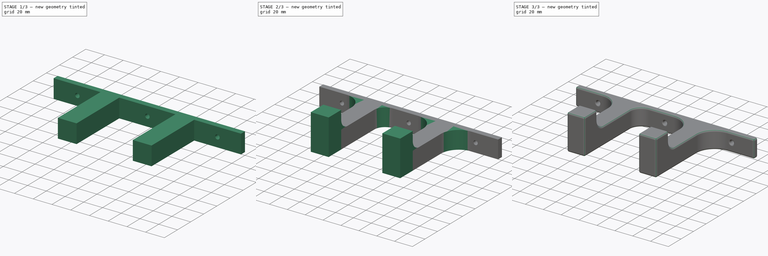
[diagram: build sequence overview — one tinted view per stage of 3, left to right]
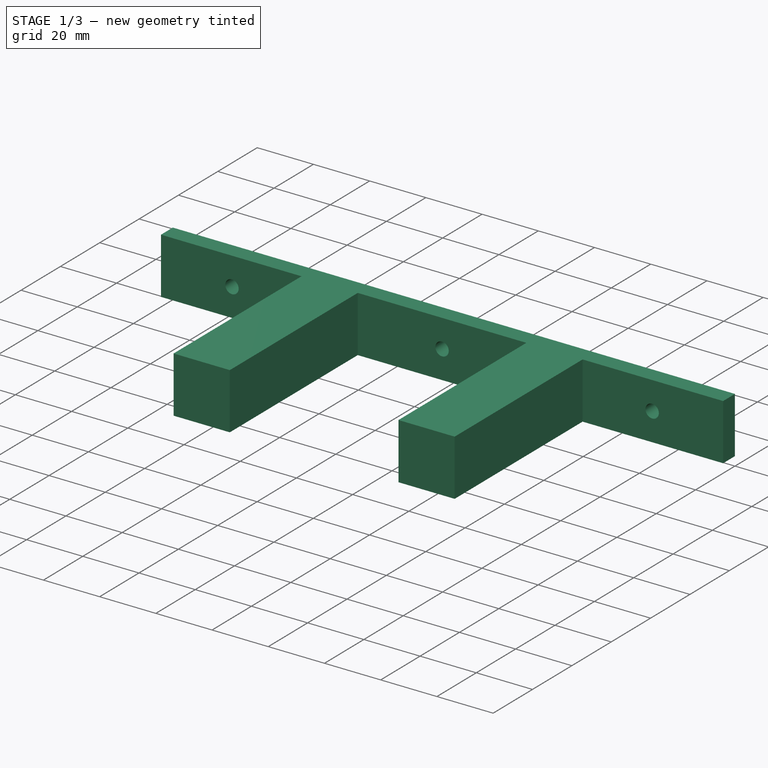
[diagram: stage 1 of 3 — iso view after this stage's code; geometry added in this stage tinted green]
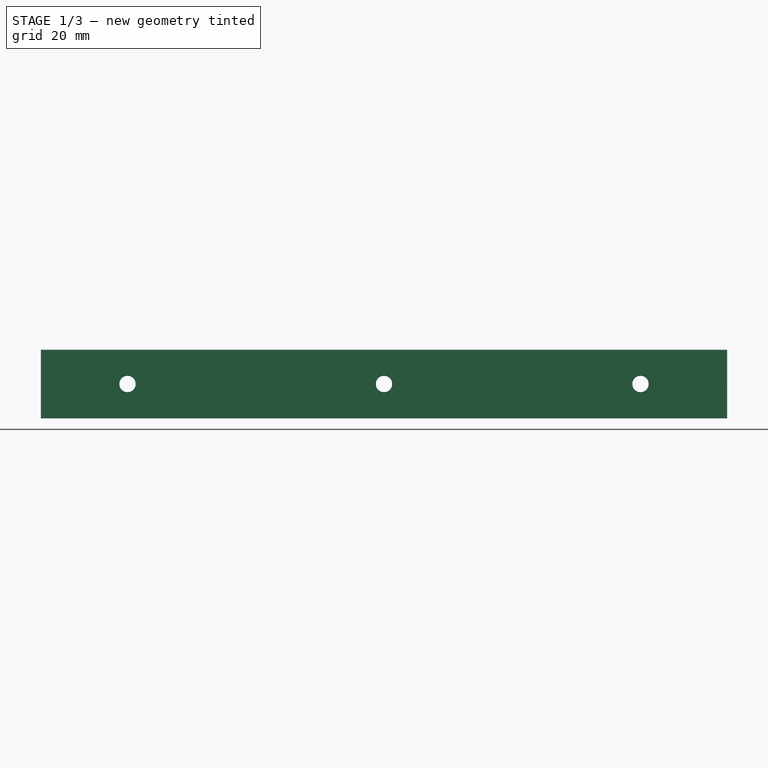
[diagram: stage 1 of 3 — front view after this stage's code; geometry added in this stage tinted green]
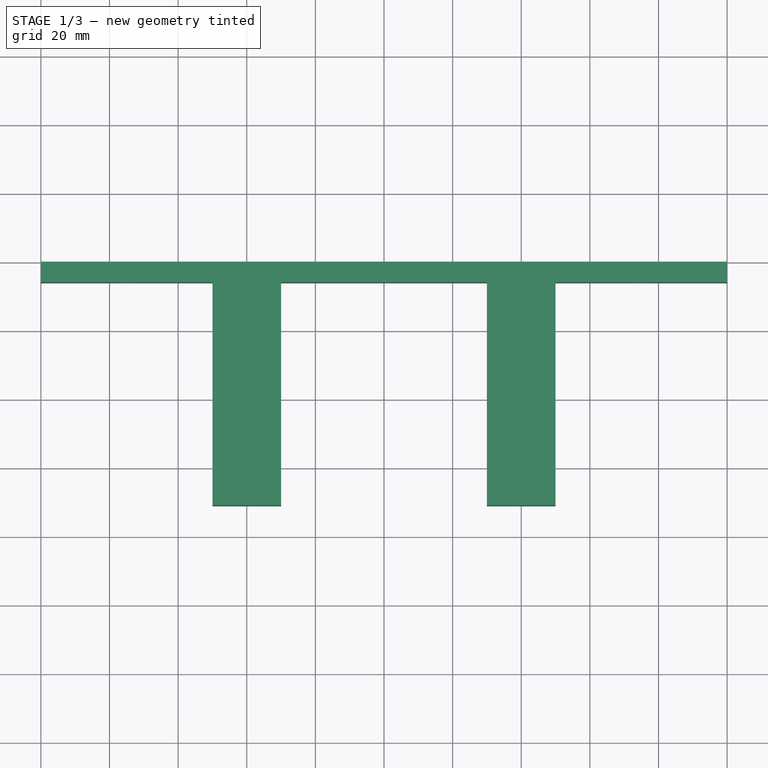
[diagram: stage 1 of 3 — top view after this stage's code; geometry added in this stage tinted green]
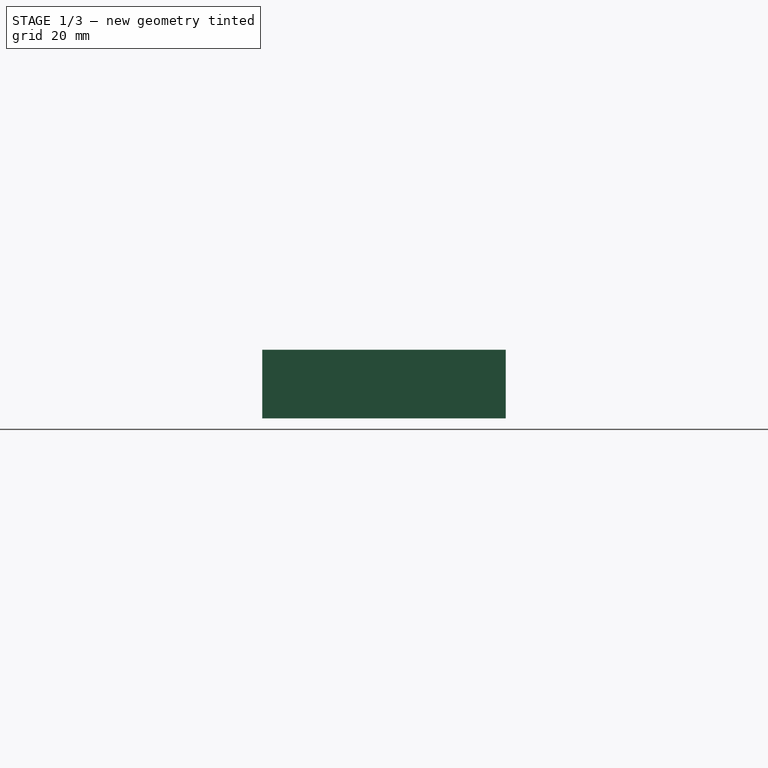
[diagram: stage 1 of 3 — right view after this stage's code; geometry added in this stage tinted green]
FCSTD DOCUMENT  (FreeCAD 2023.131R26244 +5365 (Git))
Label: Tool Holders
License: All rights reserved
LicenseURL: http://en.wikipedia.org/wiki/All_rights_reserved
objects: PartDesign::Fillet×4, Sketcher::SketchObject×3, PartDesign::Pad×3, Spreadsheet::Sheet×1, PartDesign::Body×1
note: 28 computed .brp shape members not serialized (recipe doc carries the construction recipe); baked Part::Feature solids carry a one-line shape summary decoded from their .brp

FEATURE [Spreadsheet::Sheet] Spreadsheet  label="Parameters"
  PythonMode = false
  ShowCells = 0
  TreeRank = 10
  cells = A1=Thickness; B1(thickness)=6; A2=Handle Width; B2(handle_width)=60; A3=Handle Depth; B3(handle_depth)=65; A5=Brace Thickness; B5(brace_thickness)=20; A7=Mounting Plate Height; B7(base_height)=20; A8=Moungint Plate Margin; B8(base_margin)=30; A9=Mounting Plate Width; B9(base_width)=200; A11=Hole Diameter; B11(hole_diameter)=4.75
FEATURE [Sketcher::SketchObject] Sketch006
  ArcFitTolerance = 1e-06
  AttachmentSupport = -> [XZ_Plane002]
  ExternalBSplineMaxDegree = 5
  ExternalBSplineTolerance = 0.0001
  FullyConstrained = true
  InternalTolerance = 1e-06
  InvalidShape = false
  MakeInternals = false
  MapMode = 5
  Placement = pos=(0,0,0) rot=(1,0,0;1.5708rad)
  Support = -> [XZ_Plane002]
  TreeRank = 46
  ValidateShape = true
  expr: Constraints[10] = <<Parameters>>.base_width
  expr: Constraints[11] = <<Parameters>>.base_height
  expr: Constraints[13] = <<Parameters>>.hole_diameter
  expr: Constraints[18] = <<Parameters>>.handle_width + 4 * <<Parameters>>.brace_thickness + 2 * <<Parameters>>.hole_diameter
  sketch-geometry (8):
    g0: LineSegment StartX=100 StartY=-10 StartZ=0 EndX=100 EndY=10 EndZ=0
    g1: LineSegment StartX=100 StartY=10 StartZ=0 EndX=-100 EndY=10 EndZ=0
    g2: LineSegment StartX=-100 StartY=10 StartZ=0 EndX=-100 EndY=-10 EndZ=0
    g3: LineSegment StartX=-100 StartY=-10 StartZ=0 EndX=100 EndY=-10 EndZ=0
    g4: GeomPoint [constr] X=0 Y=0 Z=0
    g5: Circle CenterX=0 CenterY=0 CenterZ=0 NormalX=0 NormalY=0 NormalZ=1 AngleXU=0 Radius=2.375
    g6: Circle CenterX=-74.75 CenterY=0 CenterZ=0 NormalX=0 NormalY=0 NormalZ=1 AngleXU=0 Radius=2.375
    g7: Circle CenterX=74.75 CenterY=0 CenterZ=0 NormalX=0 NormalY=0 NormalZ=1 AngleXU=0 Radius=2.375
  constraints (19):
    c: Coincident(g0,g1)
    c: Coincident(g1,g2)
    c: Coincident(g2,g3)
    c: Coincident(g3,g0)
    c: Horizontal(g1)
    c: Horizontal(g3)
    c: Vertical(g0)
    c: Vertical(g2)
    c: Symmetric(g1,g0,g4)
    c: Coincident(g4,g-1)
    c: DistanceX(g2,g0) = 200
    c: DistanceY(g0,g0) = 20
    c: Coincident(g5,g4)
    c: Diameter(g5) = 4.75
    c: PointOnObject(g6,g-1)
    c: Equal(g5,g6)
    c: Equal(g5,g7)
    c: Symmetric(g6,g7,g5)
    c: DistanceX(g6,g7) = 149.5
FEATURE [PartDesign::Pad] Pad
  AddSubType = 0
  AlongSketchNormal = false
  AutoTaperInnerAngle = true
  CheckUpToFaceLimits = true
  ClaimChildren = false
  Direction = (0,-1,-2e-16)
  Fit = 0
  FitJoin = 0
  InnerFit = 0
  InnerFitJoin = 0
  InvalidShape = false
  Length = 6
  Length2 = 100
  Linearize = true
  NewSolid = false
  Profile = -> Sketch006
  Suppress = false
  TaperInnerAngle = 0
  TaperInnerAngleRev = 0
  TreeRank = 47
  Type = 0
  ValidateShape = true
  _ProfileBasedVersion = 1
  expr: Length = <<Parameters>>.thickness
FEATURE [Sketcher::SketchObject] Sketch
  ArcFitTolerance = 1e-06
  AttachmentSupport = -> [Pad]
  ExternalBSplineMaxDegree = 5
  ExternalBSplineTolerance = 0.0001
  FullyConstrained = true
  InternalTolerance = 1e-06
  InvalidShape = false
  MakeInternals = false
  MapMode = 5
  Placement = pos=(0,-6,-1.3e-15) rot=(1,0,0;1.5708rad)
  Support = -> [Pad]
  TreeRank = 48
  ValidateShape = true
  expr: Constraints[22] = <<Parameters>>.base_height
  expr: Constraints[23] = <<Parameters>>.handle_width
  expr: Constraints[24] = <<Parameters>>.brace_thickness
  sketch-geometry (10):
    g0: LineSegment StartX=-30 StartY=-10 StartZ=0 EndX=-30 EndY=10 EndZ=0
    g1: LineSegment StartX=-30 StartY=10 StartZ=0 EndX=-50 EndY=10 EndZ=0
    g2: LineSegment StartX=-50 StartY=10 StartZ=0 EndX=-50 EndY=-10 EndZ=0
    g3: LineSegment StartX=-50 StartY=-10 StartZ=0 EndX=-30 EndY=-10 EndZ=0
    g4: GeomPoint [constr] X=-40 Y=-1e-16 Z=0
    g5: LineSegment StartX=50 StartY=-10 StartZ=0 EndX=50 EndY=10 EndZ=0
    g6: LineSegment StartX=50 StartY=10 StartZ=0 EndX=30 EndY=10 EndZ=0
    g7: LineSegment StartX=30 StartY=10 StartZ=0 EndX=30 EndY=-10 EndZ=0
    g8: LineSegment StartX=30 StartY=-10 StartZ=0 EndX=50 EndY=-10 EndZ=0
    g9: GeomPoint [constr] X=40 Y=0 Z=0
  constraints (25):
    c: Coincident(g0,g1)
    c: Coincident(g1,g2)
    c: Coincident(g2,g3)
    c: Coincident(g3,g0)
    c: Horizontal(g1)
    c: Horizontal(g3)
    c: Vertical(g0)
    c: Vertical(g2)
    c: Symmetric(g1,g0,g4)
    c: PointOnObject(g4,g-1)
    c: Coincident(g5,g6)
    c: Coincident(g6,g7)
    c: Coincident(g7,g8)
    c: Coincident(g8,g5)
    c: Horizontal(g6)
    c: Horizontal(g8)
    c: Vertical(g5)
    c: Vertical(g7)
    c: Symmetric(g6,g5,g9)
    c: Symmetric(g4,g9,g-1)
    c: Equal(g1,g6)
    c: Equal(g0,g7)
    c: DistanceY(g0,g0) = 20
    c: DistanceX(g0,g6) = 60
    c: DistanceX(g2,g0) = 20
FEATURE [PartDesign::Pad] Pad001
  AddSubType = 0
  AlongSketchNormal = false
  AutoTaperInnerAngle = true
  BaseFeature = -> Pad
  CheckUpToFaceLimits = true
  ClaimChildren = false
  Direction = (0,-1,-2e-16)
  Fit = 0
  FitJoin = 0
  InnerFit = 0
  InnerFitJoin = 0
  InvalidShape = false
  Length = 65
  Length2 = 100
  Linearize = true
  NewSolid = false
  Profile = -> Sketch
  Suppress = false
  TaperInnerAngle = 0
  TaperInnerAngleRev = 0
  TreeRank = 49
  Type = 0
  ValidateShape = true
  _ProfileBasedVersion = 1
  expr: Length = <<Parameters>>.handle_depth
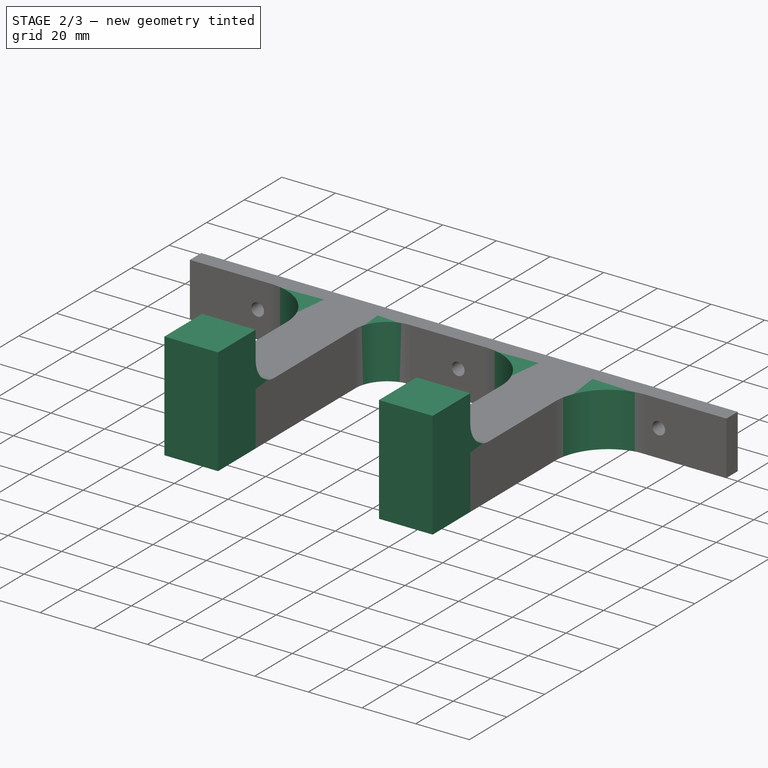
[diagram: stage 2 of 3 — iso view after this stage's code; geometry added in this stage tinted green]
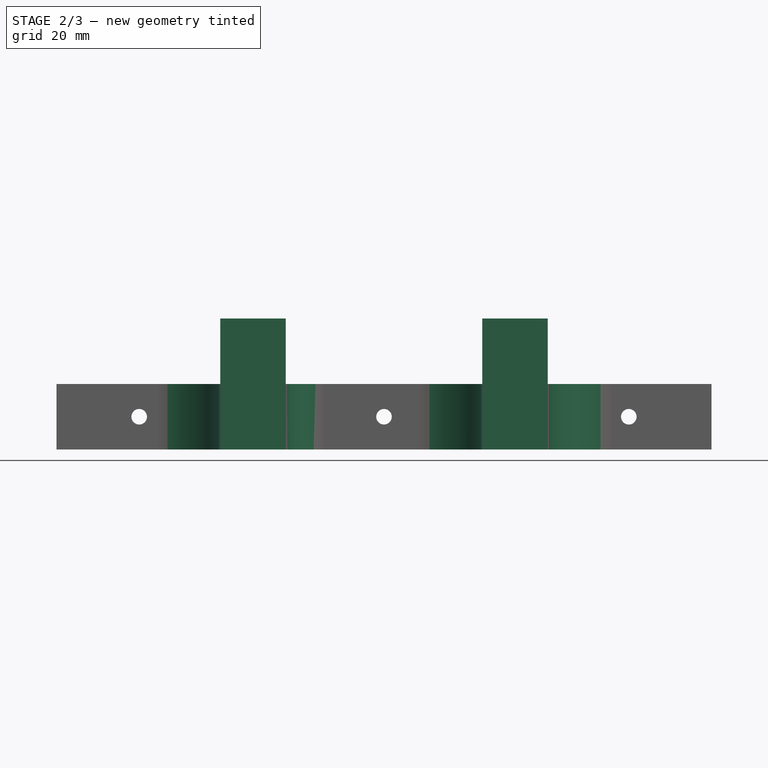
[diagram: stage 2 of 3 — front view after this stage's code; geometry added in this stage tinted green]
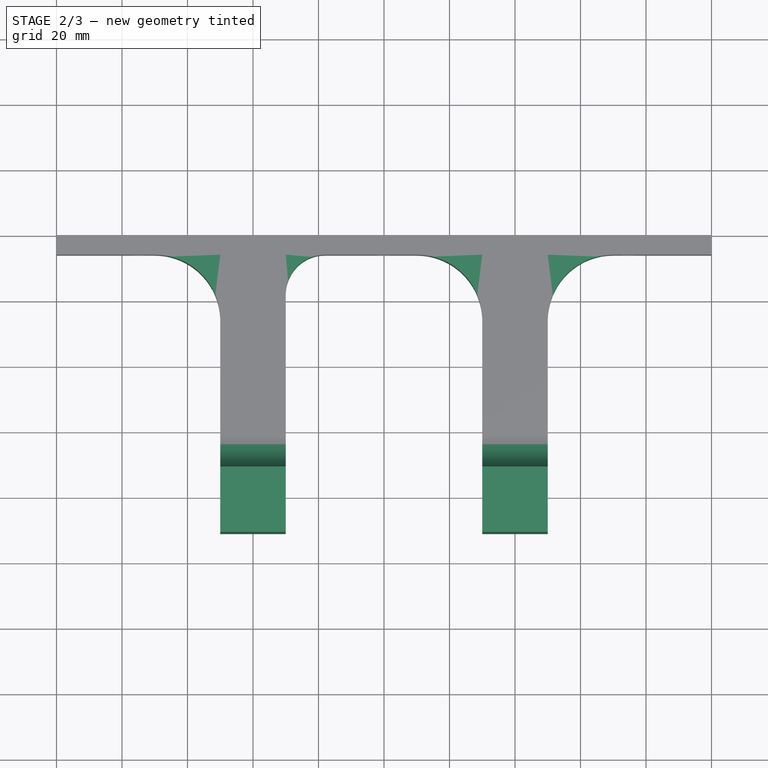
[diagram: stage 2 of 3 — top view after this stage's code; geometry added in this stage tinted green]
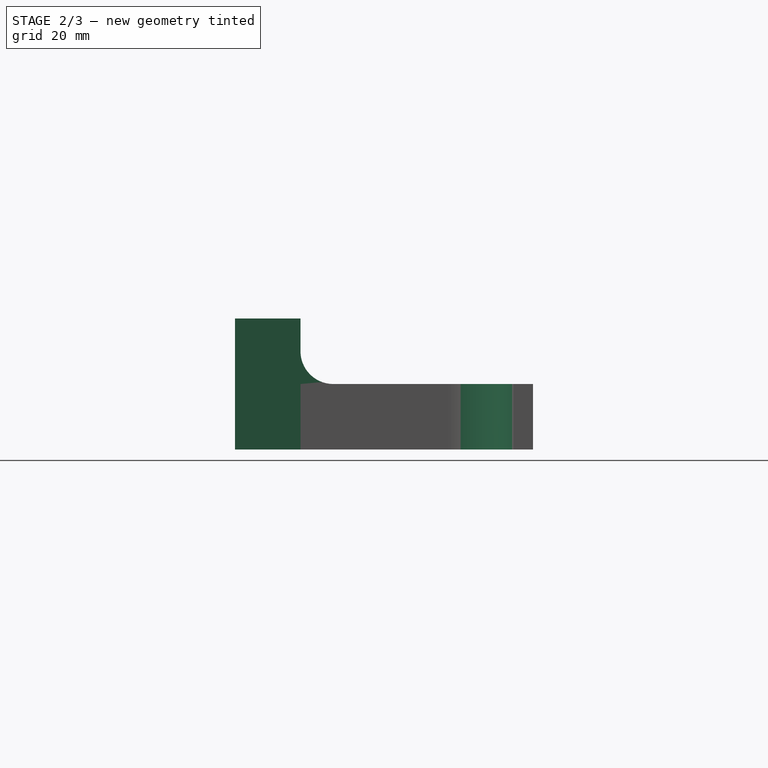
[diagram: stage 2 of 3 — right view after this stage's code; geometry added in this stage tinted green]
FEATURE [Sketcher::SketchObject] Sketch007
  ArcFitTolerance = 1e-06
  AttachmentSupport = -> [Pad001]
  ExternalBSplineMaxDegree = 5
  ExternalBSplineTolerance = 0.0001
  FullyConstrained = true
  InternalTolerance = 1e-06
  InvalidShape = false
  MakeInternals = false
  MapMode = 5
  Placement = pos=(0,-71,-1.58e-14) rot=(1,0,0;1.5708rad)
  Support = -> [Pad001]
  TreeRank = 50
  ValidateShape = true
  expr: Constraints[10] = <<Parameters>>.brace_thickness
  expr: Constraints[21] = <<Parameters>>.base_height / 2
  expr: Constraints[22] = <<Parameters>>.handle_width
  expr: Constraints[23] = <<Parameters>>.handle_width / 2
  expr: Constraints[8] = <<Parameters>>.base_height / 2
  expr: Constraints[9] = <<Parameters>>.base_height + <<Parameters>>.brace_thickness
  sketch-geometry (8):
    g0: LineSegment StartX=30 StartY=30 StartZ=0 EndX=50 EndY=30 EndZ=0
    g1: LineSegment StartX=50 StartY=30 StartZ=0 EndX=50 EndY=-10 EndZ=0
    g2: LineSegment StartX=50 StartY=-10 StartZ=0 EndX=30 EndY=-10 EndZ=0
    g3: LineSegment StartX=30 StartY=-10 StartZ=0 EndX=30 EndY=30 EndZ=0
    g4: LineSegment StartX=-50 StartY=30 StartZ=0 EndX=-30 EndY=30 EndZ=0
    g5: LineSegment StartX=-30 StartY=30 StartZ=0 EndX=-30 EndY=-10 EndZ=0
    g6: LineSegment StartX=-30 StartY=-10 StartZ=0 EndX=-50 EndY=-10 EndZ=0
    g7: LineSegment StartX=-50 StartY=-10 StartZ=0 EndX=-50 EndY=30 EndZ=0
  constraints (24):
    c: Coincident(g0,g1)
    c: Coincident(g1,g2)
    c: Coincident(g2,g3)
    c: Coincident(g3,g0)
    c: Horizontal(g0)
    c: Horizontal(g2)
    c: Vertical(g1)
    c: Vertical(g3)
    c: DistanceY(g2,g-1) = 10
    c: DistanceY(g2,g0) = 40
    c: DistanceX(g2,g1) = 20
    c: Coincident(g4,g5)
    c: Coincident(g5,g6)
    c: Coincident(g6,g7)
    c: Coincident(g7,g4)
    c: Horizontal(g4)
    c: Horizontal(g6)
    c: Vertical(g5)
    c: Vertical(g7)
    c: Equal(g2,g6)
    c: Equal(g3,g5)
    c: DistanceY(g5,g-1) = 10
    c: DistanceX(g5,g2) = 60
    c: DistanceX(g4,g-1) = 30
FEATURE [PartDesign::Pad] Pad002
  AddSubType = 0
  AlongSketchNormal = false
  AutoTaperInnerAngle = true
  BaseFeature = -> Pad001
  CheckUpToFaceLimits = true
  ClaimChildren = false
  Direction = (0,-1,-2e-16)
  Fit = 0
  FitJoin = 0
  InnerFit = 0
  InnerFitJoin = 0
  InvalidShape = false
  Length = 20
  Length2 = 100
  Linearize = true
  NewSolid = false
  Profile = -> Sketch007
  Suppress = false
  TaperInnerAngle = 0
  TaperInnerAngleRev = 0
  TreeRank = 51
  Type = 0
  ValidateShape = true
  _ProfileBasedVersion = 1
  expr: Length = <<Parameters>>.brace_thickness
FEATURE [PartDesign::Fillet] Fillet
  AddSubType = 0
  Base = -> Pad002 [Edge32,Edge31,Edge26,Edge23]
  BaseFeature = -> Pad002
  InvalidShape = false
  NewSolid = false
  Radius = 20
  SupportTransform = false
  Suppress = false
  TreeRank = 52
  ValidateShape = true
  expr: Radius = <<Parameters>>.brace_thickness
FEATURE [PartDesign::Fillet] Fillet001
  AddSubType = 0
  Base = -> Fillet [Edge75,Edge74]
  BaseFeature = -> Fillet
  InvalidShape = false
  NewSolid = false
  Radius = 10
  SupportTransform = false
  Suppress = false
  TreeRank = 53
  ValidateShape = true
  expr: Radius = <<Parameters>>.brace_thickness / 2
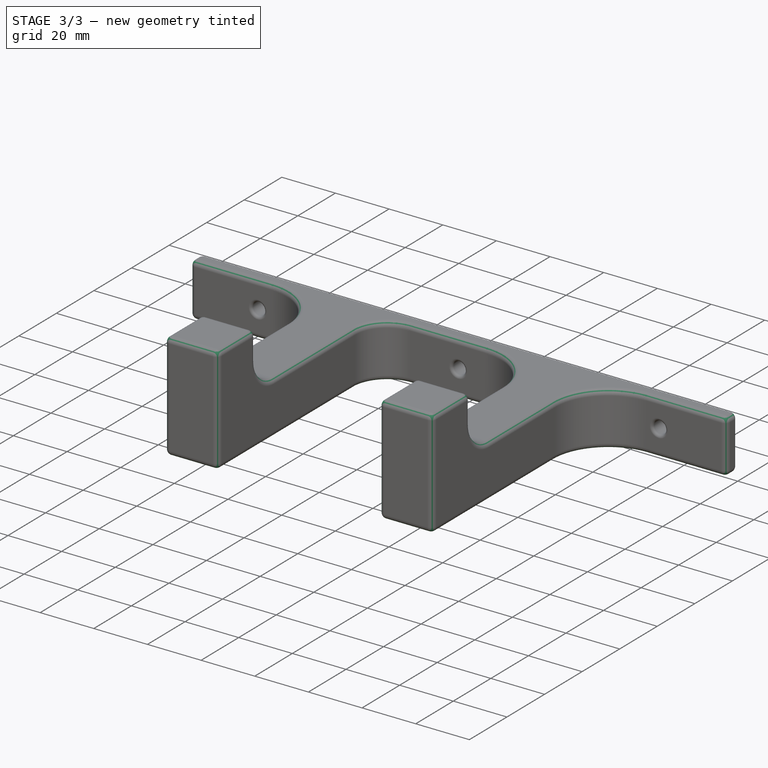
[diagram: stage 3 of 3 — iso view after this stage's code; geometry added in this stage tinted green]
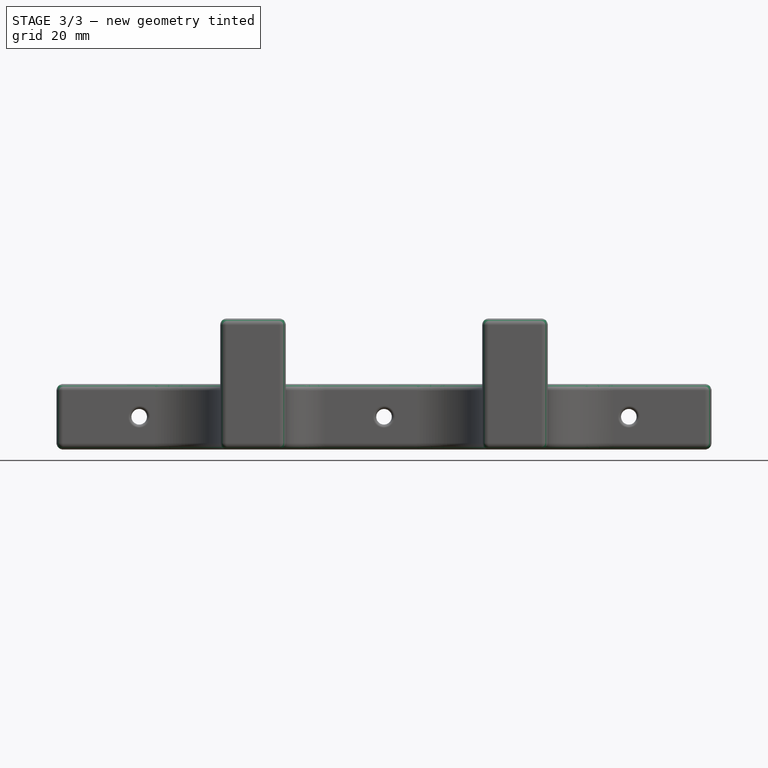
[diagram: stage 3 of 3 — front view after this stage's code; geometry added in this stage tinted green]
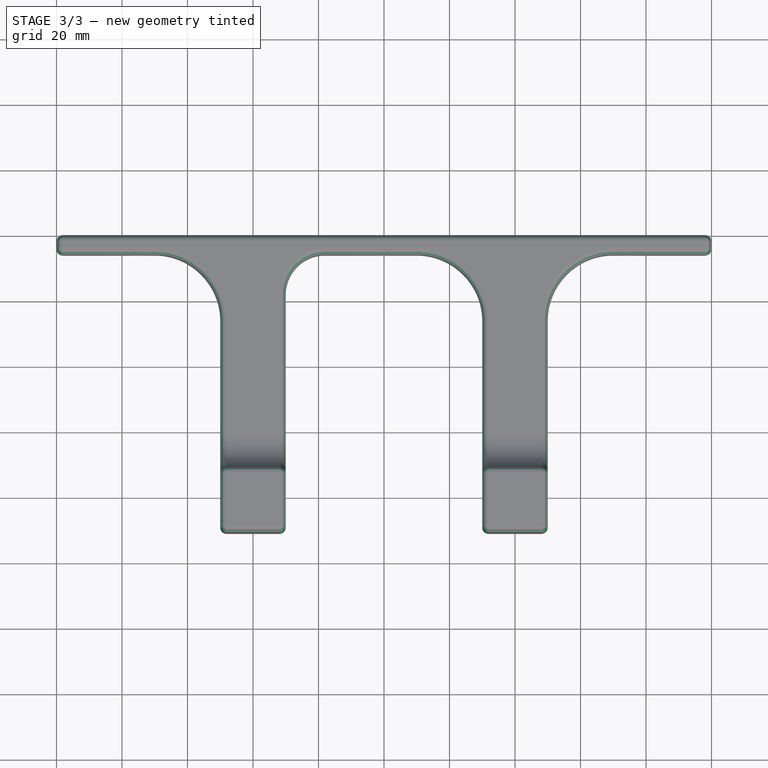
[diagram: stage 3 of 3 — top view after this stage's code; geometry added in this stage tinted green]
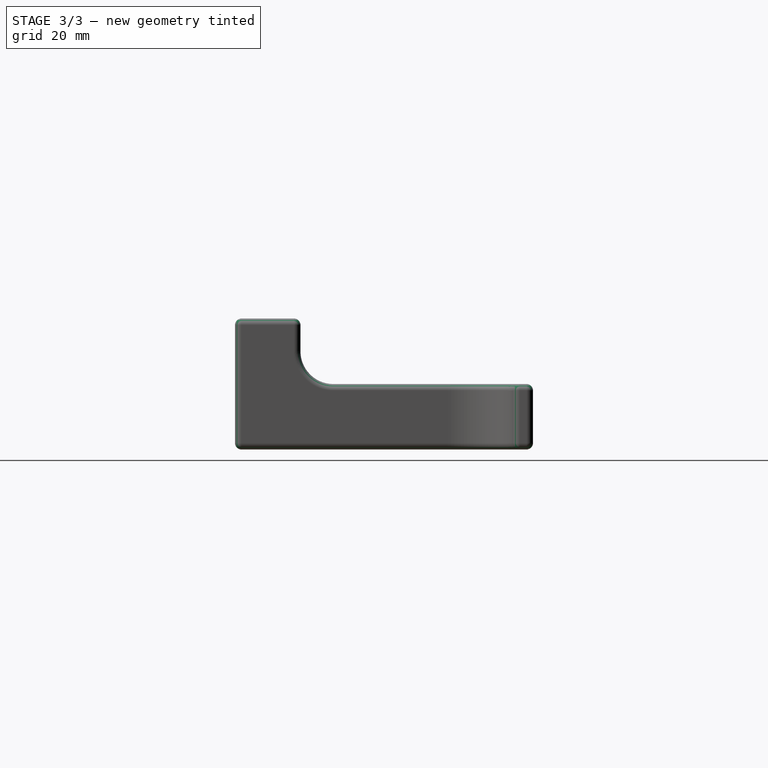
[diagram: stage 3 of 3 — right view after this stage's code; geometry added in this stage tinted green]
FEATURE [PartDesign::Fillet] Fillet002
  AddSubType = 0
  Base = -> Fillet001 [Face12,Face37,Face13,Face36,Face22,Face9,Face20,Face15]
  BaseFeature = -> Fillet001
  InvalidShape = false
  NewSolid = false
  Radius = 2
  SupportTransform = false
  Suppress = false
  TreeRank = 54
  ValidateShape = true
  expr: Radius = <<Parameters>>.thickness / 3
FEATURE [PartDesign::Fillet] Fillet003
  AddSubType = 0
  Base = -> Fillet002 [Edge28,Edge205,Edge207]
  BaseFeature = -> Fillet002
  InvalidShape = false
  NewSolid = false
  Radius = 1
  SupportTransform = false
  Suppress = false
  TreeRank = 55
  ValidateShape = true
FEATURE [PartDesign::Body] Body002  label="v3"
  AutoGroupSolids = false
  ClaimAllChildren = false
  ExportMode = 0
  Group = -> [Sketch006,Pad,Sketch,Pad001,Sketch007,Pad002,Fillet,Fillet001,Fillet002,Fillet003]
  InvalidShape = false
  Origin = -> Origin002
  Tip = -> Fillet003
  TreeRank = 45
  ValidateShape = true
  _ExportChildren = -> [Pad,Pad001,Pad002,Fillet,Fillet001,Fillet002,Fillet003]
  _GroupVersion = 1
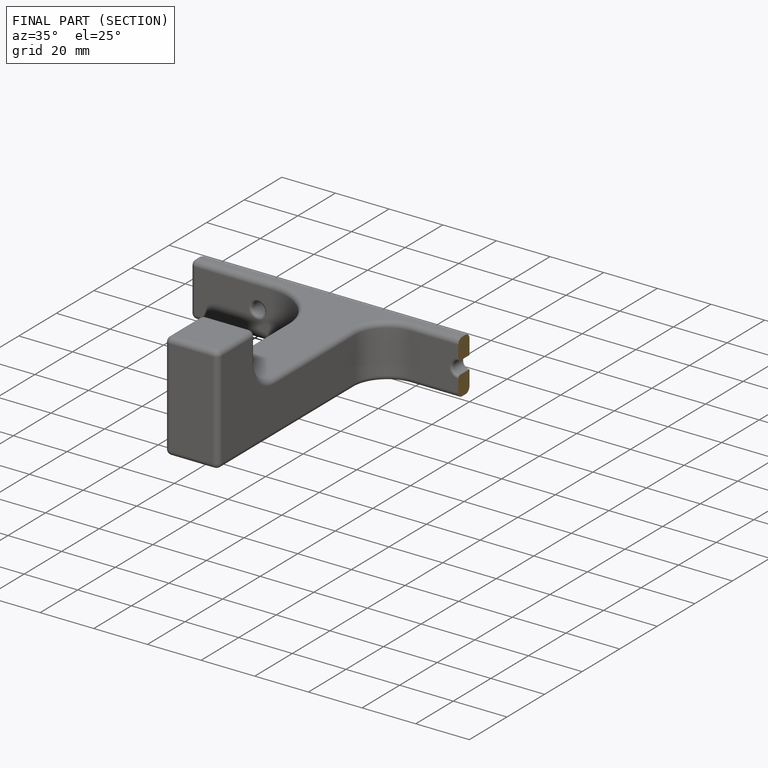
[diagram: finished part — half-section view (interior)]
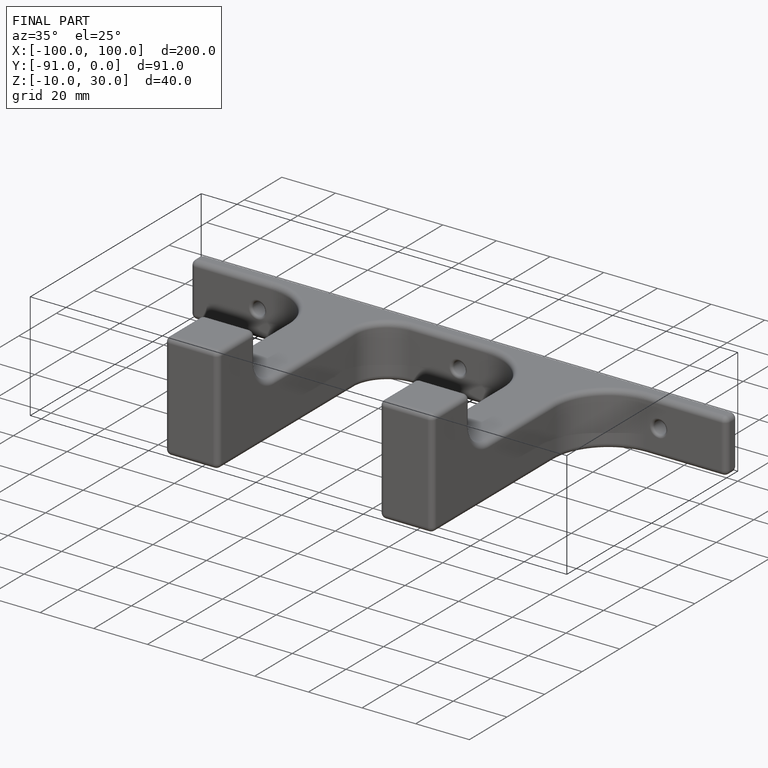
[diagram: finished part — iso view with bounding-box wireframe]
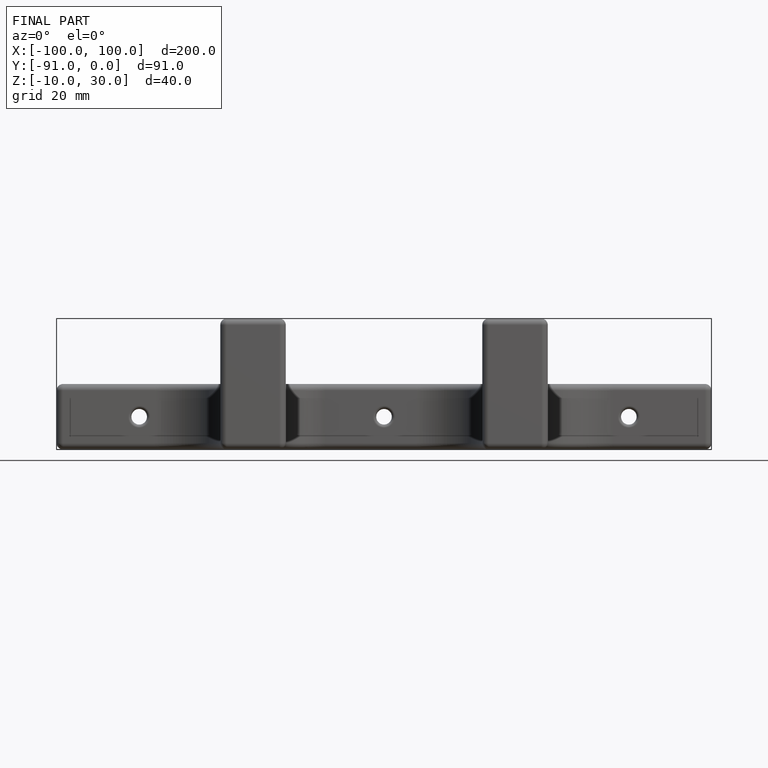
[diagram: finished part — front view with bounding-box wireframe]
